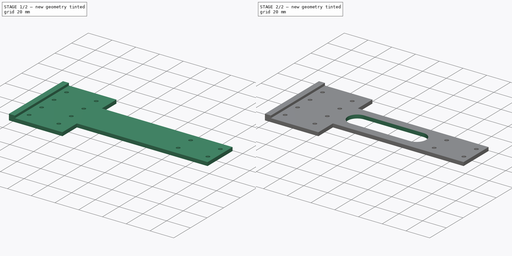
[diagram: build sequence overview — one tinted view per stage of 2, left to right]
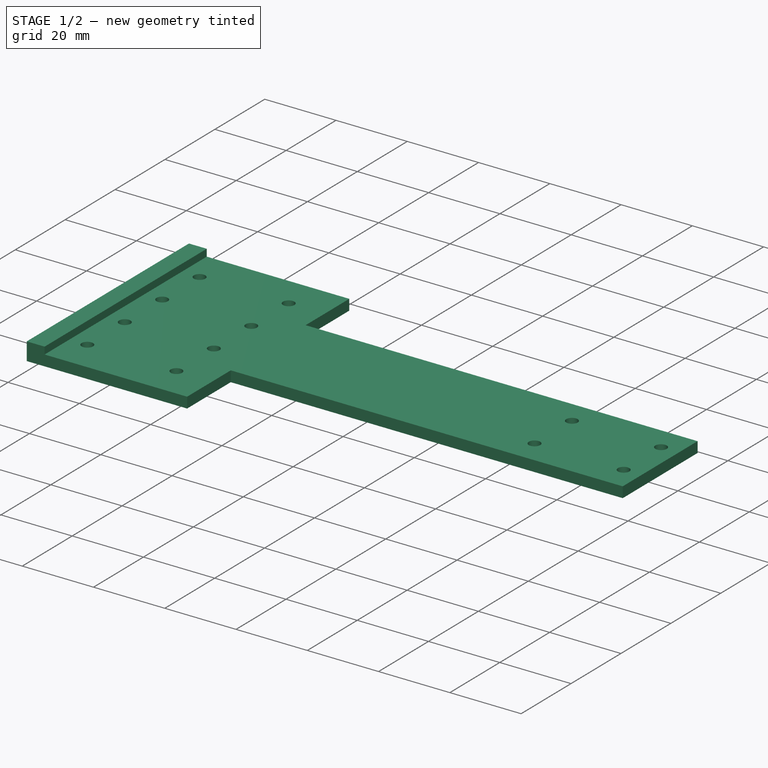
[diagram: stage 1 of 2 — iso view after this stage's code; geometry added in this stage tinted green]
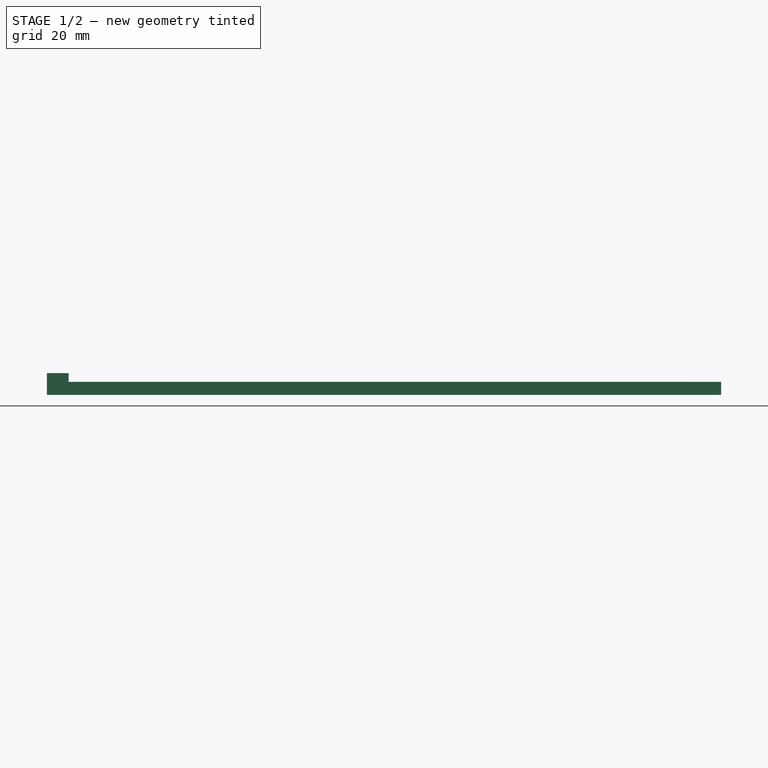
[diagram: stage 1 of 2 — front view after this stage's code; geometry added in this stage tinted green]
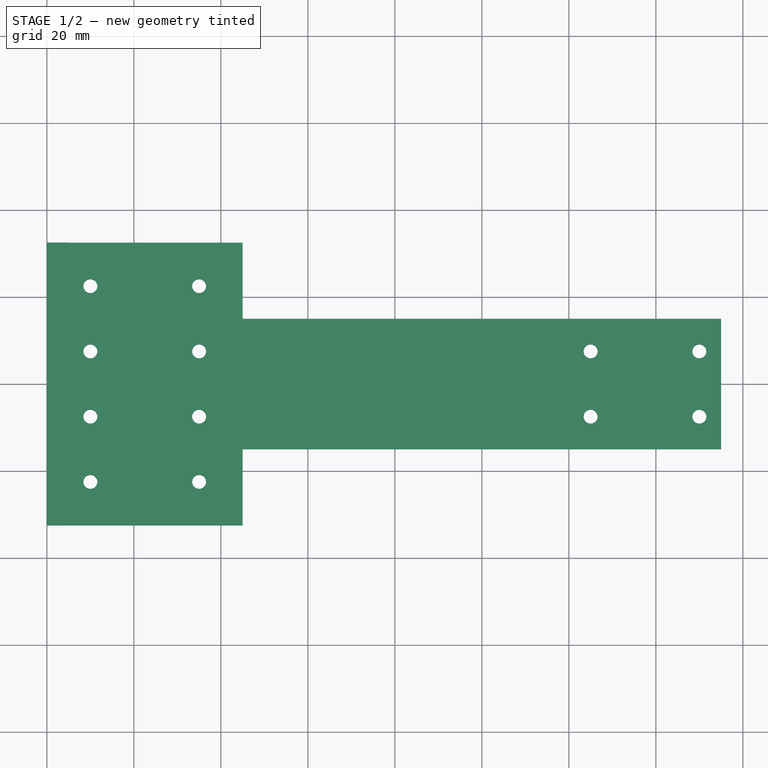
[diagram: stage 1 of 2 — top view after this stage's code; geometry added in this stage tinted green]
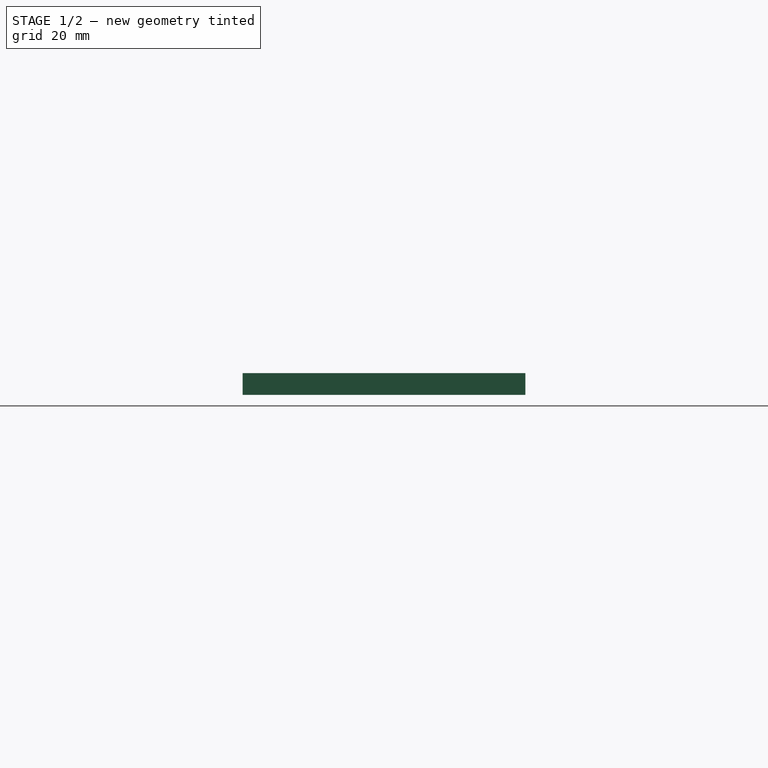
[diagram: stage 1 of 2 — right view after this stage's code; geometry added in this stage tinted green]
FCSTD DOCUMENT  (FreeCAD 0.16R6712 (Git))
Label: Herramentas_huecos_base
License: CC-BY 3.0
LicenseURL: http://creativecommons.org/licenses/by/3.0/
objects: Sketcher::SketchObject×3, PartDesign::Pad×2, PartDesign::Pocket×1
note: 9 computed .brp shape members not serialized (recipe doc carries the construction recipe); baked Part::Feature solids carry a one-line shape summary decoded from their .brp

FEATURE [Sketcher::SketchObject] Sketch
  sketch-geometry (32):
    g0: LineSegment [constr] StartX=-70 StartY=22.5 StartZ=0 EndX=-45 EndY=22.5 EndZ=0
    g1: LineSegment [constr] StartX=-45 StartY=22.5 StartZ=0 EndX=-45 EndY=7.5 EndZ=0
    g2: LineSegment [constr] StartX=-45 StartY=7.5 StartZ=0 EndX=-70 EndY=7.5 EndZ=0
    g3: LineSegment [constr] StartX=-70 StartY=7.5 StartZ=0 EndX=-70 EndY=22.5 EndZ=0
    g4: LineSegment [constr] StartX=-70 StartY=-7.5 StartZ=0 EndX=-45 EndY=-7.5 EndZ=0
    g5: LineSegment [constr] StartX=-45 StartY=-7.5 StartZ=0 EndX=-45 EndY=-22.5 EndZ=0
    g6: LineSegment [constr] StartX=-45 StartY=-22.5 StartZ=0 EndX=-70 EndY=-22.5 EndZ=0
    g7: LineSegment [constr] StartX=-70 StartY=-22.5 StartZ=0 EndX=-70 EndY=-7.5 EndZ=0
    g8: LineSegment [constr] StartX=45 StartY=7.5 StartZ=0 EndX=70 EndY=7.5 EndZ=0
    g9: LineSegment [constr] StartX=70 StartY=7.5 StartZ=0 EndX=70 EndY=-7.5 EndZ=0
    g10: LineSegment [constr] StartX=70 StartY=-7.5 StartZ=0 EndX=45 EndY=-7.5 EndZ=0
    g11: LineSegment [constr] StartX=45 StartY=-7.5 StartZ=0 EndX=45 EndY=7.5 EndZ=0
    g12: Circle CenterX=-70 CenterY=22.5 CenterZ=0 NormalX=0 NormalY=0 NormalZ=1 Radius=1.6
    g13: Circle CenterX=-45 CenterY=22.5 CenterZ=0 NormalX=0 NormalY=0 NormalZ=1 Radius=1.6
    g14: Circle CenterX=-70 CenterY=7.5 CenterZ=0 NormalX=0 NormalY=0 NormalZ=1 Radius=1.6
    g15: Circle CenterX=-45 CenterY=7.5 CenterZ=0 NormalX=0 NormalY=0 NormalZ=1 Radius=1.6
    g16: Circle CenterX=-70 CenterY=-7.5 CenterZ=0 NormalX=0 NormalY=0 NormalZ=1 Radius=1.6
    g17: Circle CenterX=-45 CenterY=-7.5 CenterZ=0 NormalX=0 NormalY=0 NormalZ=1 Radius=1.6
    g18: Circle CenterX=-70 CenterY=-22.5 CenterZ=0 NormalX=0 NormalY=0 NormalZ=1 Radius=1.6
    g19: Circle CenterX=-45 CenterY=-22.5 CenterZ=0 NormalX=0 NormalY=0 NormalZ=1 Radius=1.6
    g20: Circle CenterX=45 CenterY=7.5 CenterZ=0 NormalX=0 NormalY=0 NormalZ=1 Radius=1.6
    g21: Circle CenterX=45 CenterY=-7.5 CenterZ=0 NormalX=0 NormalY=0 NormalZ=1 Radius=1.6
    g22: Circle CenterX=70 CenterY=7.5 CenterZ=0 NormalX=0 NormalY=0 NormalZ=1 Radius=1.6
    g23: Circle CenterX=70 CenterY=-7.5 CenterZ=0 NormalX=0 NormalY=0 NormalZ=1 Radius=1.6
    g24: LineSegment StartX=-80 StartY=32.5 StartZ=0 EndX=-80 EndY=-32.5 EndZ=0
    g25: LineSegment StartX=75 StartY=15 StartZ=0 EndX=75 EndY=-15 EndZ=0
    g26: LineSegment StartX=-80 StartY=32.5 StartZ=0 EndX=-35 EndY=32.5 EndZ=0
    g27: LineSegment StartX=-80 StartY=-32.5 StartZ=0 EndX=-35 EndY=-32.5 EndZ=0
    g28: LineSegment StartX=-35 StartY=-32.5 StartZ=0 EndX=-35 EndY=-15 EndZ=0
    g29: LineSegment StartX=-35 StartY=-15 StartZ=0 EndX=75 EndY=-15 EndZ=0
    g30: LineSegment StartX=-35 StartY=32.5 StartZ=0 EndX=-35 EndY=15 EndZ=0
    g31: LineSegment StartX=-35 StartY=15 StartZ=0 EndX=75 EndY=15 EndZ=0
  constraints (82):
    c: Coincident(g0,g1)
    c: Coincident(g1,g2)
    c: Coincident(g2,g3)
    c: Coincident(g3,g0)
    c: Horizontal(g0)
    c: Horizontal(g2)
    c: Vertical(g1)
    c: Vertical(g3)
    c: Coincident(g4,g5)
    c: Coincident(g5,g6)
    c: Coincident(g6,g7)
    c: Coincident(g7,g4)
    c: Horizontal(g4)
    c: Horizontal(g6)
    c: Vertical(g5)
    c: Vertical(g7)
    c: Coincident(g8,g9)
    c: Coincident(g9,g10)
    c: Coincident(g10,g11)
    c: Coincident(g11,g8)
    c: Horizontal(g8)
    c: Horizontal(g10)
    c: Vertical(g9)
    c: Vertical(g11)
    c: Symmetric(g10,g8,g-1)
    c: Symmetric(g4,g2,g-1)
    c: Equal(g2,g4)
    c: Equal(g4,g8)
    c: Equal(g1,g5)
    c: Equal(g5,g11)
    c: DistanceY(g9) = -15
    c: DistanceX(g8) = 25
    c: DistanceX(g1,g8) = 115
    c: DistanceX(g-1,g1) = -45
    c: DistanceY(g0,g4) = -30
    c: Coincident(g12,g0)
    c: Coincident(g13,g0)
    c: Coincident(g14,g2)
    c: Coincident(g15,g1)
    c: Coincident(g16,g4)
    c: Coincident(g17,g4)
    c: Coincident(g18,g6)
    c: Coincident(g19,g5)
    c: Coincident(g20,g8)
    c: Coincident(g21,g10)
    c: Coincident(g22,g8)
    c: Coincident(g23,g9)
    c: Equal(g23,g21)
    c: Equal(g21,g20)
    c: Equal(g20,g22)
    c: Equal(g22,g13)
    c: Equal(g13,g12)
    c: Equal(g12,g14)
    c: Equal(g14,g15)
    c: Equal(g15,g17)
    c: Equal(g17,g16)
    c: Equal(g16,g18)
    c: Equal(g18,g19)
    c: Radius(g13) = 1.6
    c: Vertical(g24)
    c: Vertical(g25)
    c: DistanceX(g-1,g24) = -80
    c: Symmetric(g24,g24,g-1)
    c: DistanceY(g24) = -65
    c: DistanceX(g-1,g25) = 75
    c: Coincident(g26,g24)
    c: Horizontal(g26)
    c: Coincident(g27,g24)
    c: Horizontal(g27)
    c: Coincident(g28,g27)
    c: Vertical(g28)
    c: Coincident(g29,g28)
    c: Coincident(g29,g25)
    c: Horizontal(g29)
    c: Coincident(g30,g26)
    c: Vertical(g30)
    c: Coincident(g31,g30)
    c: Coincident(g31,g25)
    c: Horizontal(g31)
    c: Symmetric(g28,g30,g-1)
    c: DistanceY(g25) = -30
    c: DistanceX(g26) = 45
FEATURE [PartDesign::Pad] Pad
  Length = 3
  Length2 = 100
  Sketch = -> Sketch
  Type = 0
FEATURE [Sketcher::SketchObject] Sketch001
  ExternalGeometry = -> [Pad]
  Placement = pos=(0,0,3) rot=(0,0,1;0rad)
  Support = -> Pad [Face22]
  sketch-geometry (4):
    g0: LineSegment StartX=-80 StartY=32.5 StartZ=0 EndX=-75 EndY=32.5 EndZ=0
    g1: LineSegment StartX=-75 StartY=32.5 StartZ=0 EndX=-75 EndY=-32.5 EndZ=0
    g2: LineSegment StartX=-75 StartY=-32.5 StartZ=0 EndX=-80 EndY=-32.5 EndZ=0
    g3: LineSegment StartX=-80 StartY=-32.5 StartZ=0 EndX=-80 EndY=32.5 EndZ=0
  constraints (11):
    c: Coincident(g0,g1)
    c: Coincident(g1,g2)
    c: Coincident(g2,g3)
    c: Coincident(g3,g0)
    c: Horizontal(g0)
    c: Horizontal(g2)
    c: Vertical(g1)
    c: Vertical(g3)
    c: Coincident(g0,g-3)
    c: Coincident(g2,g-3)
    c: DistanceX(g2) = -5
FEATURE [PartDesign::Pad] Pad001
  Length = 2
  Length2 = 100
  Sketch = -> Sketch001
  Type = 0
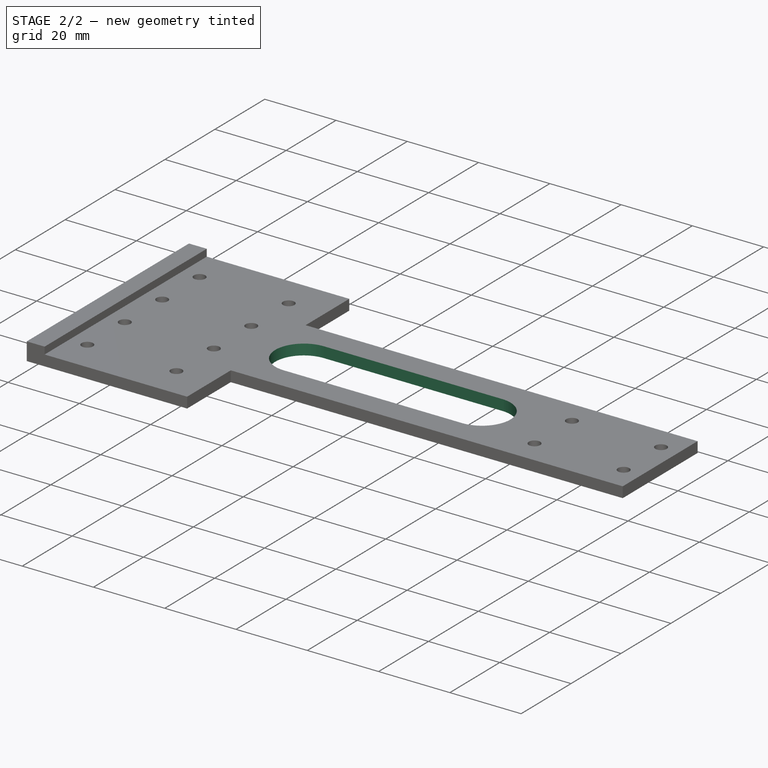
[diagram: stage 2 of 2 — iso view after this stage's code; geometry added in this stage tinted green]
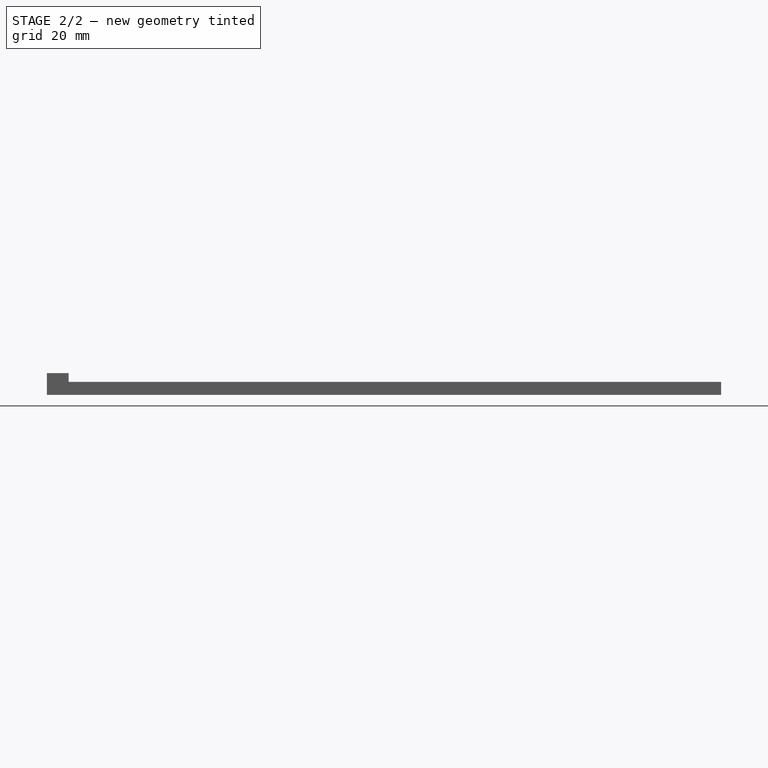
[diagram: stage 2 of 2 — front view after this stage's code; geometry added in this stage tinted green]
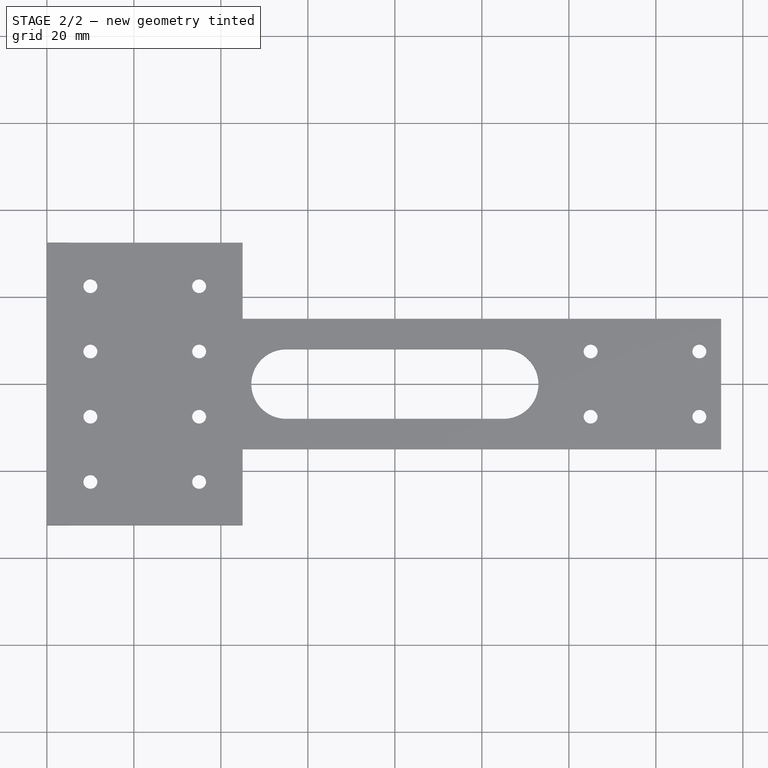
[diagram: stage 2 of 2 — top view after this stage's code; geometry added in this stage tinted green]
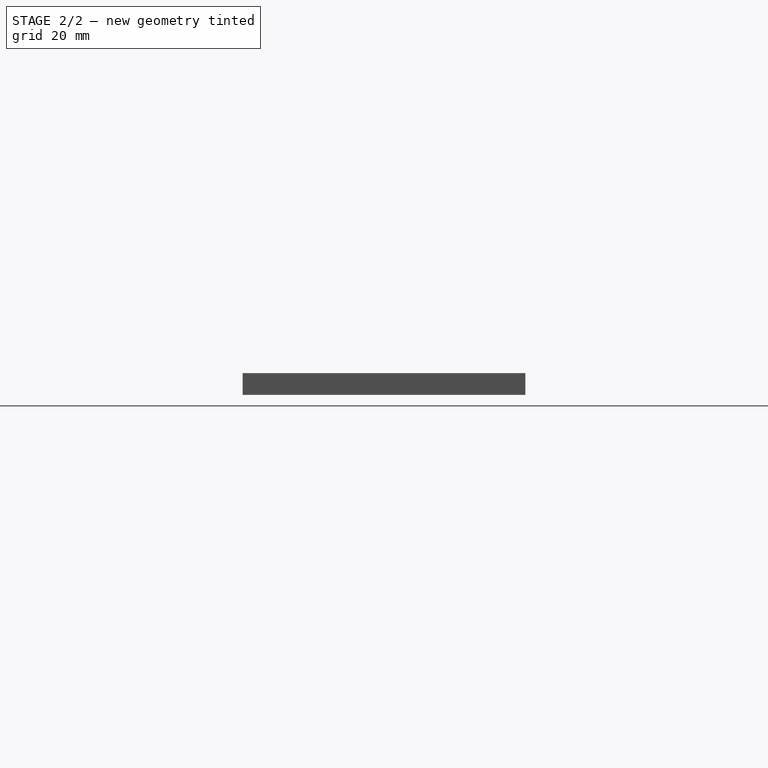
[diagram: stage 2 of 2 — right view after this stage's code; geometry added in this stage tinted green]
FEATURE [Sketcher::SketchObject] Sketch002
  Placement = pos=(0,0,3) rot=(0,0,1;0rad)
  Support = -> Pad001 [Face4]
  sketch-geometry (4):
    g0: ArcOfCircle CenterX=-25 CenterY=0 CenterZ=0 NormalX=0 NormalY=0 NormalZ=1 Radius=8 StartAngle=1.5708 EndAngle=4.71239
    g1: ArcOfCircle CenterX=25 CenterY=0 CenterZ=0 NormalX=0 NormalY=0 NormalZ=1 Radius=8 StartAngle=4.71239 EndAngle=7.85398
    g2: LineSegment StartX=-25 StartY=-8 StartZ=0 EndX=25 EndY=-8 EndZ=0
    g3: LineSegment StartX=-25 StartY=8 StartZ=0 EndX=25 EndY=8 EndZ=0
  constraints (14):
    c: Tangent(g0,g2)
    c: Tangent(g0,g3)
    c: Tangent(g1,g2)
    c: Tangent(g1,g3)
    c: Coincident(g0,g3)
    c: Coincident(g0,g2)
    c: Coincident(g2,g1)
    c: Coincident(g3,g1)
    c: Horizontal(g2)
    c: Equal(g0,g1)
    c: PointOnObject(g0,g-1)
    c: Symmetric(g1,g0,g-1)
    c: DistanceX(g3) = 50
    c: Radius(g0) = 8
FEATURE [PartDesign::Pocket] Pocket
  Length = 5
  Sketch = -> Sketch002
  Type = 0
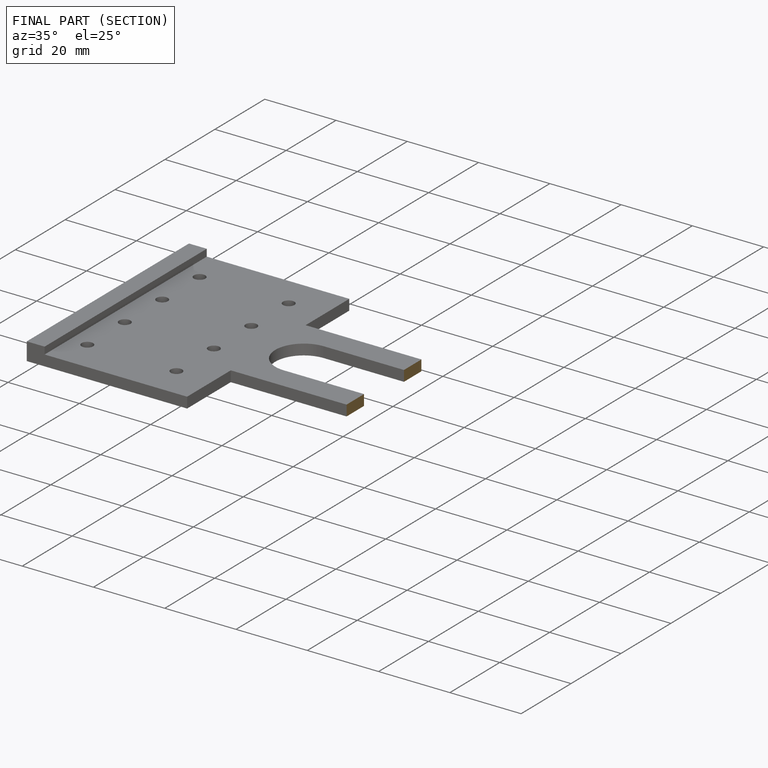
[diagram: finished part — half-section view (interior)]
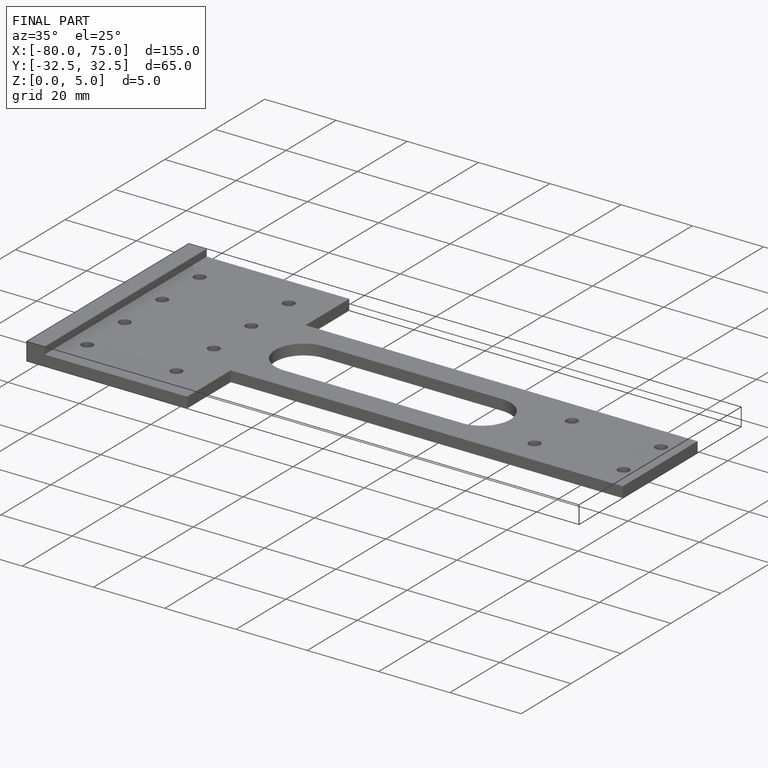
[diagram: finished part — iso view with bounding-box wireframe]
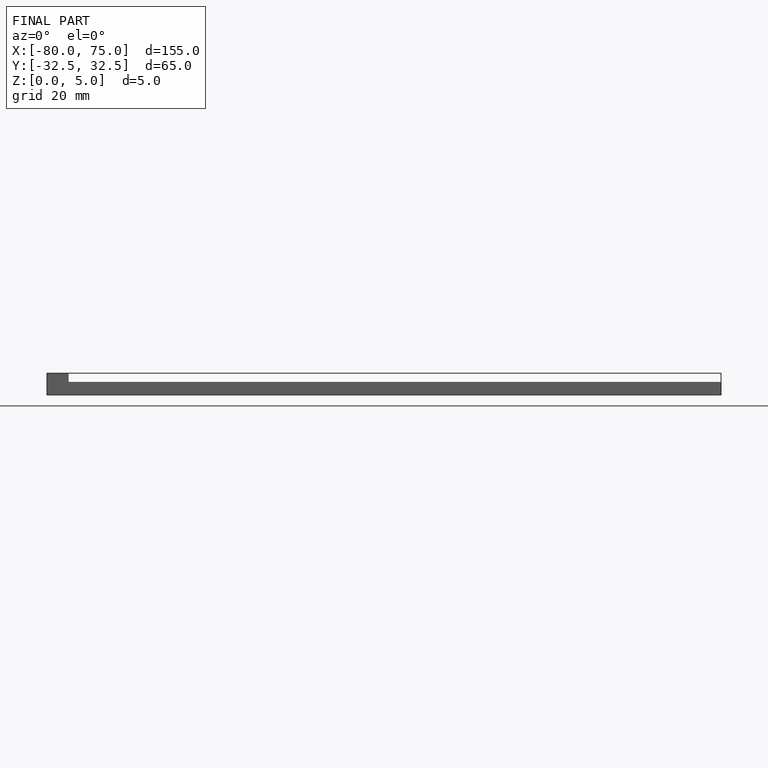
[diagram: finished part — front view with bounding-box wireframe]
